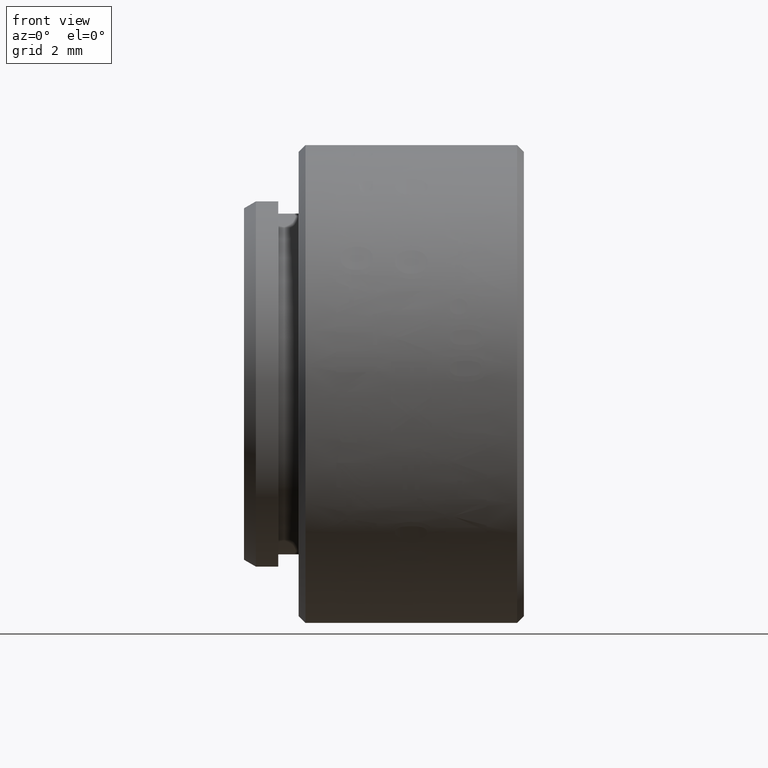
[diagram: clean part render]
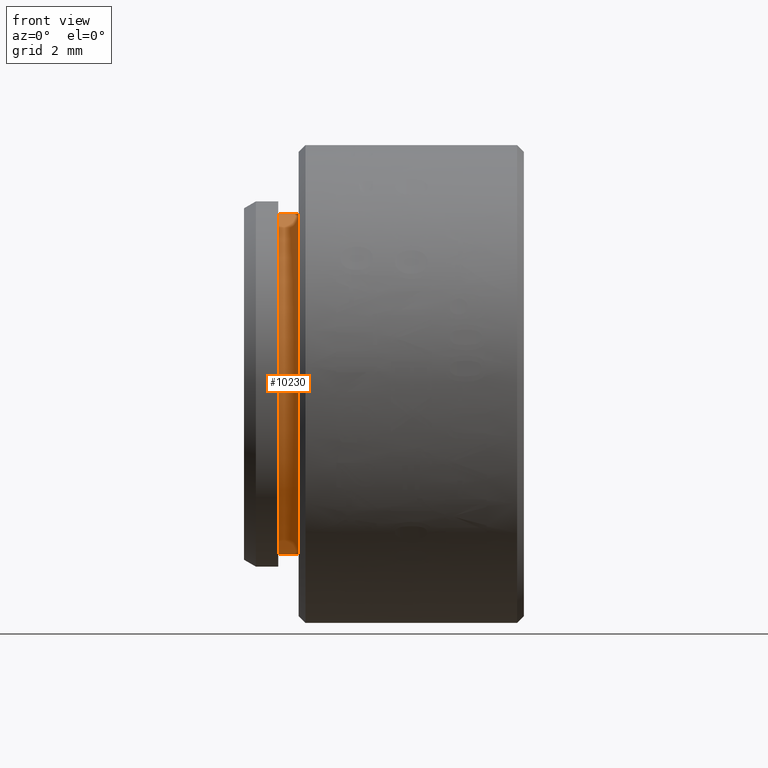
[diagram: same view with one face highlighted and labeled with its STEP entity id]
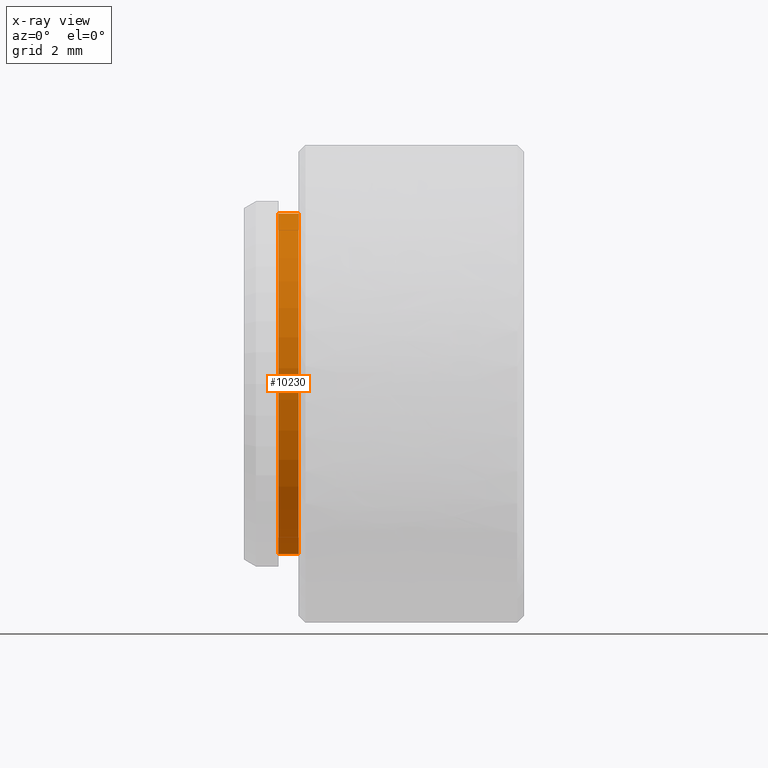
[diagram: x-ray of the same camera — body ghosted, the highlighted face saturated]
A machine part, front view. The second image highlights one B-rep face of the part: STEP entity #10230.
The next image is the same camera in x-ray: the body ghosted, the highlighted face saturated — about 0% of this face is hidden behind the body in this view.
In plain terms, the highlighted cylindrical surface (partial cylindrical patch) has radius 6.3373 mm, axis along (-1, -0, -0).
Its self-contained STEP definition (entity closure, byte-faithful):
#23 = EDGE_CURVE ( 'NONE', #6337, #7018, #9045, .T. ) ;
#1030 = CARTESIAN_POINT ( 'NONE',  ( 1.269999999999996900, 0.0000000000000000000, 0.0000000000000000000 ) ) ;
#1645 = EDGE_CURVE ( 'NONE', #12115, #11193, #13611, .T. ) ;
#2161 = DIRECTION ( 'NONE',  ( 0.0000000000000000000, 0.0000000000000000000, 1.000000000000000000 ) ) ;
#2243 = CARTESIAN_POINT ( 'NONE',  ( 2.031999999999996500, 0.0000000000000000000, 0.0000000000000000000 ) ) ;
#2375 = CIRCLE ( 'NONE', #4375, 6.337299999999999000 ) ;
#2685 = DIRECTION ( 'NONE',  ( 0.0000000000000000000, 0.0000000000000000000, 1.000000000000000000 ) ) ;
#3410 = FACE_OUTER_BOUND ( 'NONE', #10606, .T. ) ;
#3576 = DIRECTION ( 'NONE',  ( 0.0000000000000000000, 0.0000000000000000000, 1.000000000000000000 ) ) ;
#3906 = CARTESIAN_POINT ( 'NONE',  ( 1.269999999999996900, 0.0000000000000000000, 6.337299999999999000 ) ) ;
#4375 = AXIS2_PLACEMENT_3D ( 'NONE', #1030, #8955, #2161 ) ;
#4449 = AXIS2_PLACEMENT_3D ( 'NONE', #2243, #10359, #3576 ) ;
#5160 = CARTESIAN_POINT ( 'NONE',  ( 2.031999999999996500, 7.760954160236520100E-016, -6.337299999999999000 ) ) ;
#6020 = VECTOR ( 'NONE', #14667, 1000.000000000000000 ) ;
#6335 = EDGE_CURVE ( 'NONE', #12115, #6337, #9017, .T. ) ;
#6337 = VERTEX_POINT ( 'NONE', #14650 ) ;
#6529 = AXIS2_PLACEMENT_3D ( 'NONE', #7190, #9482, #2685 ) ;
#6876 = VECTOR ( 'NONE', #8981, 1000.000000000000000 ) ;
#7018 = VERTEX_POINT ( 'NONE', #3906 ) ;
#7190 = CARTESIAN_POINT ( 'NONE',  ( 0.0000000000000000000, 0.0000000000000000000, 0.0000000000000000000 ) ) ;
#8045 = EDGE_CURVE ( 'NONE', #11193, #7018, #2375, .T. ) ;
#8668 = ORIENTED_EDGE ( 'NONE', *, *, #1645, .F. ) ;
#8740 = CYLINDRICAL_SURFACE ( 'NONE', #6529, 6.337299999999999000 ) ;
#8955 = DIRECTION ( 'NONE',  ( -1.000000000000000000, -0.0000000000000000000, -0.0000000000000000000 ) ) ;
#8981 = DIRECTION ( 'NONE',  ( -1.000000000000000000, -0.0000000000000000000, -0.0000000000000000000 ) ) ;
#9017 = CIRCLE ( 'NONE', #4449, 6.337299999999999000 ) ;
#9045 = LINE ( 'NONE', #13577, #6020 ) ;
#9482 = DIRECTION ( 'NONE',  ( -1.000000000000000000, -0.0000000000000000000, -0.0000000000000000000 ) ) ;
#9894 = ORIENTED_EDGE ( 'NONE', *, *, #23, .T. ) ;
#10015 = ORIENTED_EDGE ( 'NONE', *, *, #6335, .T. ) ;
#10230 = ADVANCED_FACE ( 'NONE', ( #3410 ), #8740, .T. ) ;
#10359 = DIRECTION ( 'NONE',  ( -1.000000000000000000, -0.0000000000000000000, -0.0000000000000000000 ) ) ;
#10606 = EDGE_LOOP ( 'NONE', ( #8668, #10015, #9894, #12068 ) ) ;
#11193 = VERTEX_POINT ( 'NONE', #12420 ) ;
#12068 = ORIENTED_EDGE ( 'NONE', *, *, #8045, .F. ) ;
#12115 = VERTEX_POINT ( 'NONE', #5160 ) ;
#12420 = CARTESIAN_POINT ( 'NONE',  ( 1.269999999999996900, 7.760954160236520100E-016, -6.337299999999999000 ) ) ;
#13577 = CARTESIAN_POINT ( 'NONE',  ( 0.0000000000000000000, 0.0000000000000000000, 6.337299999999999000 ) ) ;
#13611 = LINE ( 'NONE', #14603, #6876 ) ;
#14603 = CARTESIAN_POINT ( 'NONE',  ( 0.0000000000000000000, 7.760954160236520100E-016, -6.337299999999999000 ) ) ;
#14650 = CARTESIAN_POINT ( 'NONE',  ( 2.031999999999996500, 0.0000000000000000000, 6.337299999999999000 ) ) ;
#14667 = DIRECTION ( 'NONE',  ( -1.000000000000000000, -0.0000000000000000000, -0.0000000000000000000 ) ) ;